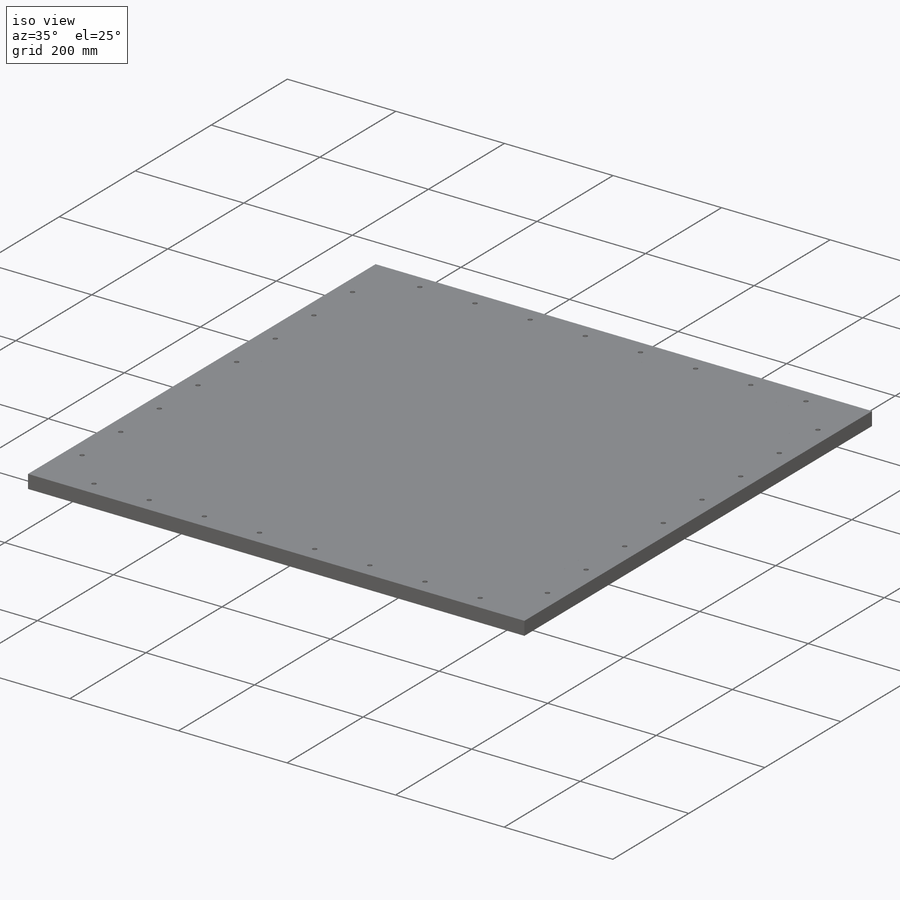
[diagram: iso view]
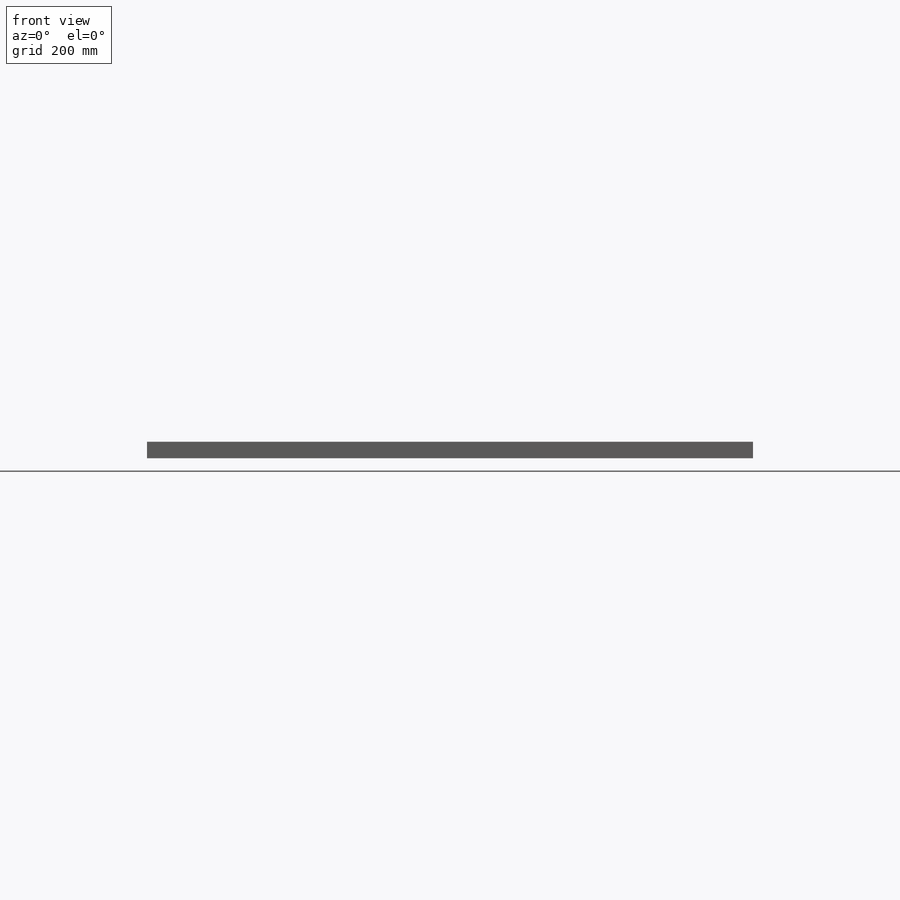
[diagram: front view]
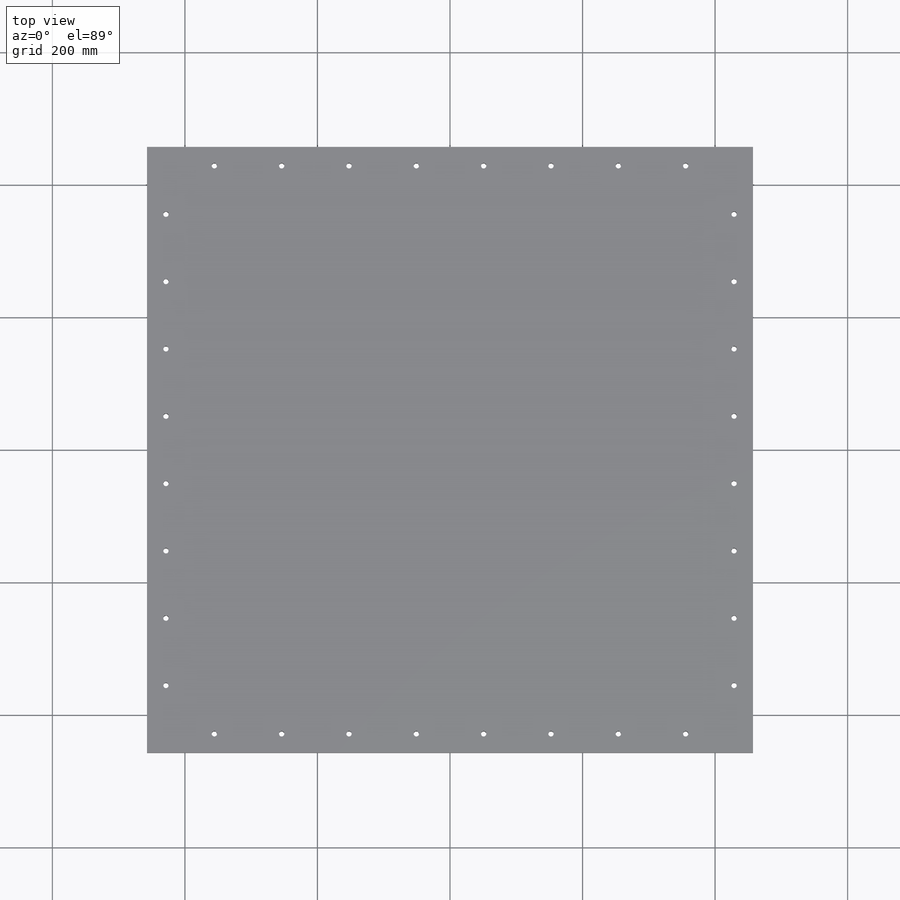
[diagram: top view]
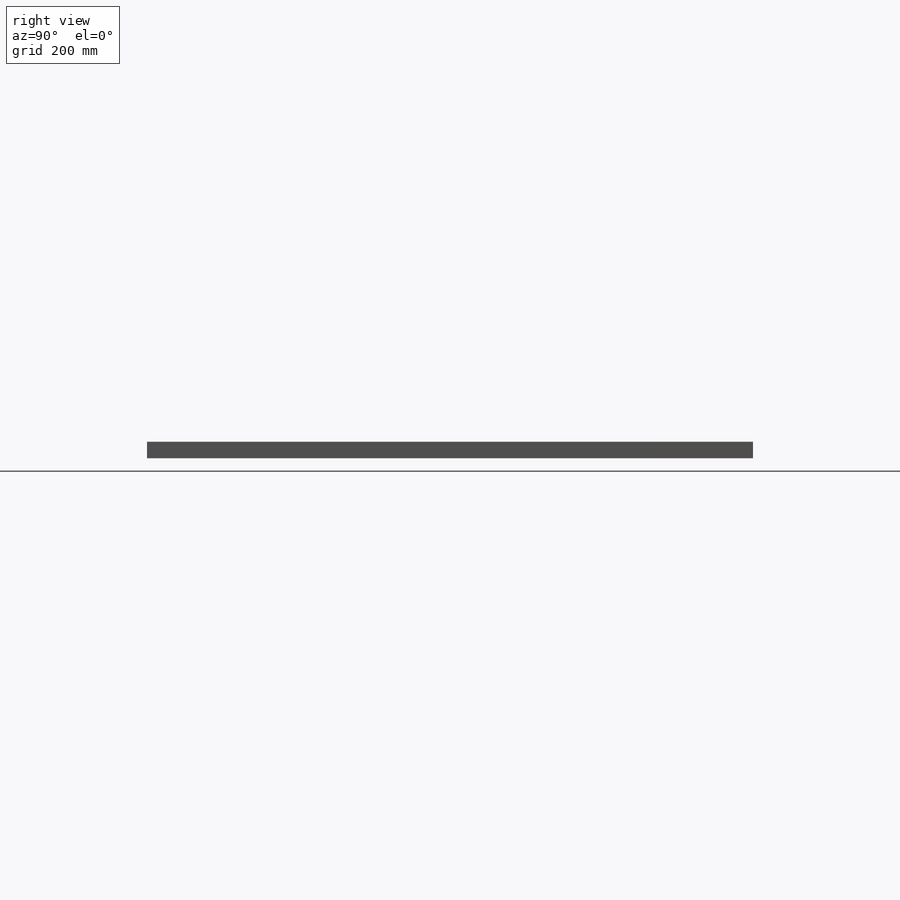
[diagram: right view]
SOLIDWORKS PART (.sldprt)
format: sldprt  version: not decoded by parser v0  size: 275,968 bytes
history: native  units: mm
features: sketch x5, extrude x2, material x1, hole x1, pattern_linear x1, pattern_circular x1 (+11 scaffold rows collapsed)
feature tree (22):
  scaffold x11  (default folders/planes/origin — collapsed)
  material  "Material <not specified>"
  sketch  "Sketch1"  dims[D1=800.1mm]
  extrude  "Boss-Extrude1"  Depth=25mm
  sketch  "Sketch2"  dims[D1=914.4mm D2=0.0mm]
  extrude  "Boss-Extrude2"  [1 undecoded]
  hole  "3/8-16 Tapped Hole1"  Diameter=7.9375mm Depth=25mm
  sketch  "Sketch4"  dims[D1=50.8mm]
  sketch  "Sketch3"  dims[hole-wizard template sketch: 59 standard entries collapsed; hole parameters kept: c18.Thread Major Dia.=7.9375mm c18.Thru Tap Drill Depth=25.0mm]
  pattern_linear  "LPattern1"  Count1=4 Count2=5 Spacing1=101.6mm Spacing2=101.6mm
  pattern_circular  "CirPattern1"  Count=4 Angle=360deg
  sketch  "Sketch5"  dims[D1=762.0mm]
decode coverage: 9 of 10 modeling features carry decoded parameters
note: ~ marks probable driven/reference dimensions
note: 1 parameter value undecoded
note: suppression state not decoded; provenance and decode notes live in map.json
